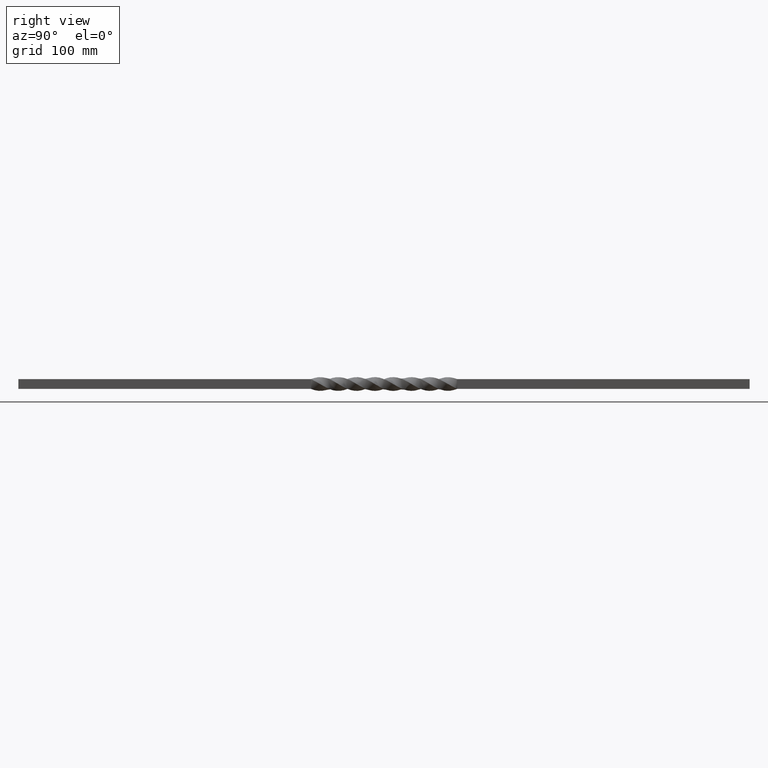
[diagram: clean part render]
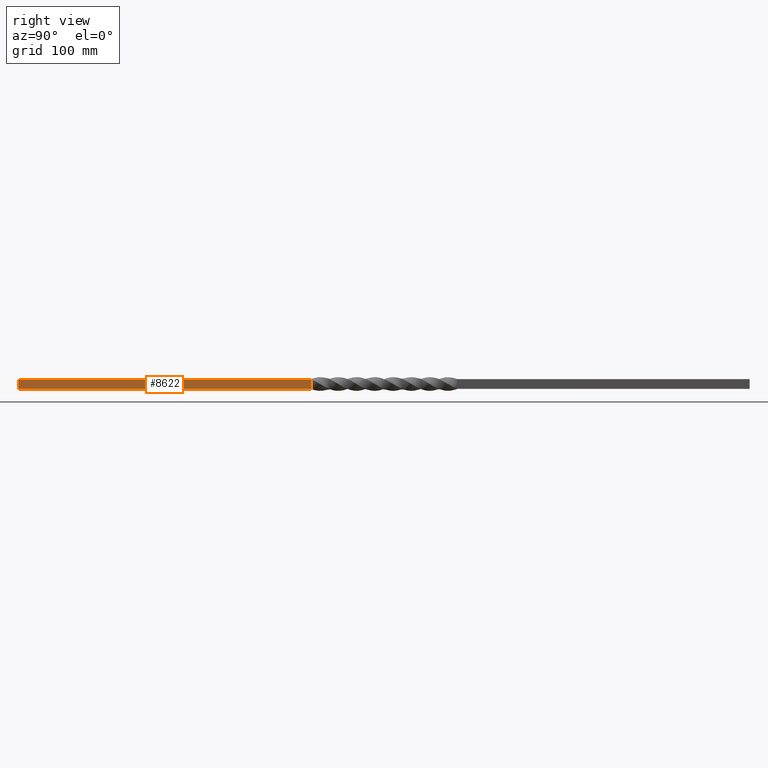
[diagram: same view with one face highlighted and labeled with its STEP entity id]
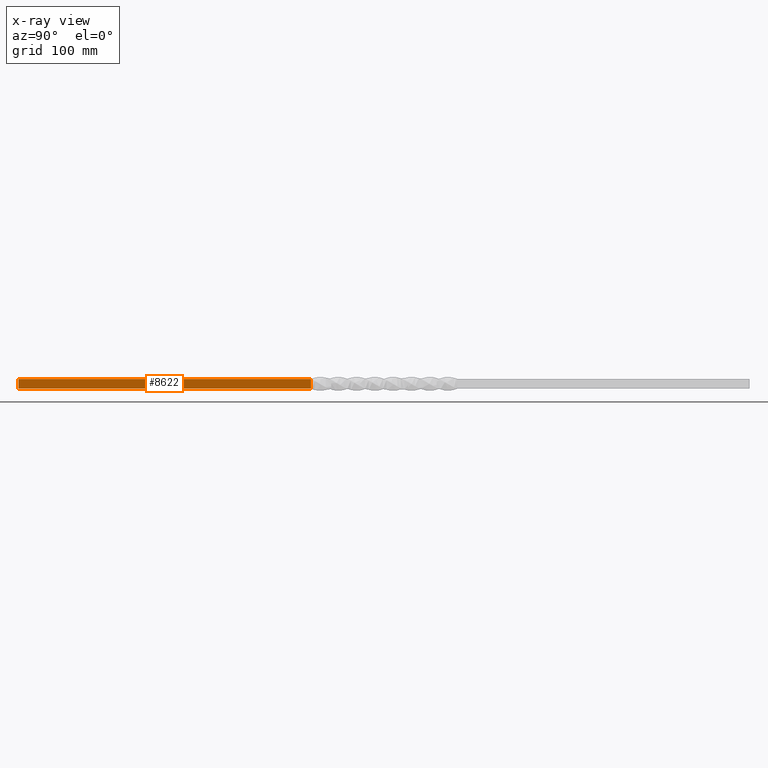
[diagram: x-ray of the same camera — body ghosted, the highlighted face saturated]
A machine part, right view. The second image highlights one B-rep face of the part: STEP entity #8622.
The next image is the same camera in x-ray: the body ghosted, the highlighted face saturated — about 0% of this face is hidden behind the body in this view.
In plain terms, the highlighted planar face has unit normal (-1, 0, -0).
Its self-contained STEP definition (entity closure, byte-faithful):
#197 = VECTOR ( 'NONE', #2958, 1000.000000000000000 ) ;
#953 = DIRECTION ( 'NONE',  ( -5.829550530040476304E-10, 0.000000000000000000, 1.000000000000000000 ) ) ;
#1814 = CARTESIAN_POINT ( 'NONE',  ( 6.000000000000000888, -916.9705627633168206, 6.000000000000000888 ) ) ;
#1912 = DIRECTION ( 'NONE',  ( -1.000000000000000000, 0.000000000000000000, -5.829550530040476304E-10 ) ) ;
#2409 = FACE_OUTER_BOUND ( 'NONE', #10170, .T. ) ;
#2866 = VERTEX_POINT ( 'NONE', #6796 ) ;
#2958 = DIRECTION ( 'NONE',  ( 5.829550530040476304E-10, 0.000000000000000000, -1.000000000000000000 ) ) ;
#3014 = ORIENTED_EDGE ( 'NONE', *, *, #9477, .F. ) ;
#3037 = CARTESIAN_POINT ( 'NONE',  ( 6.000000006995461987, -450.0000000000000000, -5.999999997126786333 ) ) ;
#3214 = LINE ( 'NONE', #4561, #197 ) ;
#3299 = AXIS2_PLACEMENT_3D ( 'NONE', #5971, #1912, #953 ) ;
#3735 = CARTESIAN_POINT ( 'NONE',  ( 6.000000000000000888, -450.0000000000000000, 6.000000000000000888 ) ) ;
#3805 = ORIENTED_EDGE ( 'NONE', *, *, #5809, .T. ) ;
#4561 = CARTESIAN_POINT ( 'NONE',  ( 6.000000000000000888, -450.0000000000000000, 6.000000000000000888 ) ) ;
#4657 = LINE ( 'NONE', #6007, #10645 ) ;
#5081 = CARTESIAN_POINT ( 'NONE',  ( 6.000000000000000888, -90.00000000000000000, 6.000000000000000888 ) ) ;
#5115 = EDGE_CURVE ( 'NONE', #5409, #2866, #9471, .T. ) ;
#5173 = VERTEX_POINT ( 'NONE', #3735 ) ;
#5256 = CARTESIAN_POINT ( 'NONE',  ( 6.000000000000000888, -90.00000000000000000, 0.000000000000000000 ) ) ;
#5293 = DIRECTION ( 'NONE',  ( -0.000000000000000000, 0.000000000000000000, -1.000000000000000000 ) ) ;
#5296 = VECTOR ( 'NONE', #7739, 1000.000000000000000 ) ;
#5409 = VERTEX_POINT ( 'NONE', #5081 ) ;
#5809 = EDGE_CURVE ( 'NONE', #8807, #2866, #4657, .T. ) ;
#5846 = VECTOR ( 'NONE', #5293, 1000.000000000000000 ) ;
#5941 = EDGE_CURVE ( 'NONE', #5173, #8807, #3214, .T. ) ;
#5971 = CARTESIAN_POINT ( 'NONE',  ( 6.000000000000000888, -916.9705627633168206, 6.000000000000000888 ) ) ;
#6007 = CARTESIAN_POINT ( 'NONE',  ( 6.000000006995461987, -916.9705627633168206, -5.999999997126786333 ) ) ;
#6796 = CARTESIAN_POINT ( 'NONE',  ( 6.000000000000000888, -90.00000000000000000, -5.999999750000000631 ) ) ;
#7032 = LINE ( 'NONE', #1814, #5296 ) ;
#7677 = PLANE ( 'NONE',  #3299 ) ;
#7739 = DIRECTION ( 'NONE',  ( -0.000000000000000000, 1.000000000000000000, -0.000000000000000000 ) ) ;
#8622 = ADVANCED_FACE ( 'NONE', ( #2409 ), #7677, .F. ) ;
#8807 = VERTEX_POINT ( 'NONE', #3037 ) ;
#9299 = ORIENTED_EDGE ( 'NONE', *, *, #5115, .F. ) ;
#9407 = DIRECTION ( 'NONE',  ( -0.000000000000000000, 1.000000000000000000, -0.000000000000000000 ) ) ;
#9435 = ORIENTED_EDGE ( 'NONE', *, *, #5941, .T. ) ;
#9471 = LINE ( 'NONE', #5256, #5846 ) ;
#9477 = EDGE_CURVE ( 'NONE', #5173, #5409, #7032, .T. ) ;
#10170 = EDGE_LOOP ( 'NONE', ( #9435, #3805, #9299, #3014 ) ) ;
#10645 = VECTOR ( 'NONE', #9407, 1000.000000000000000 ) ;